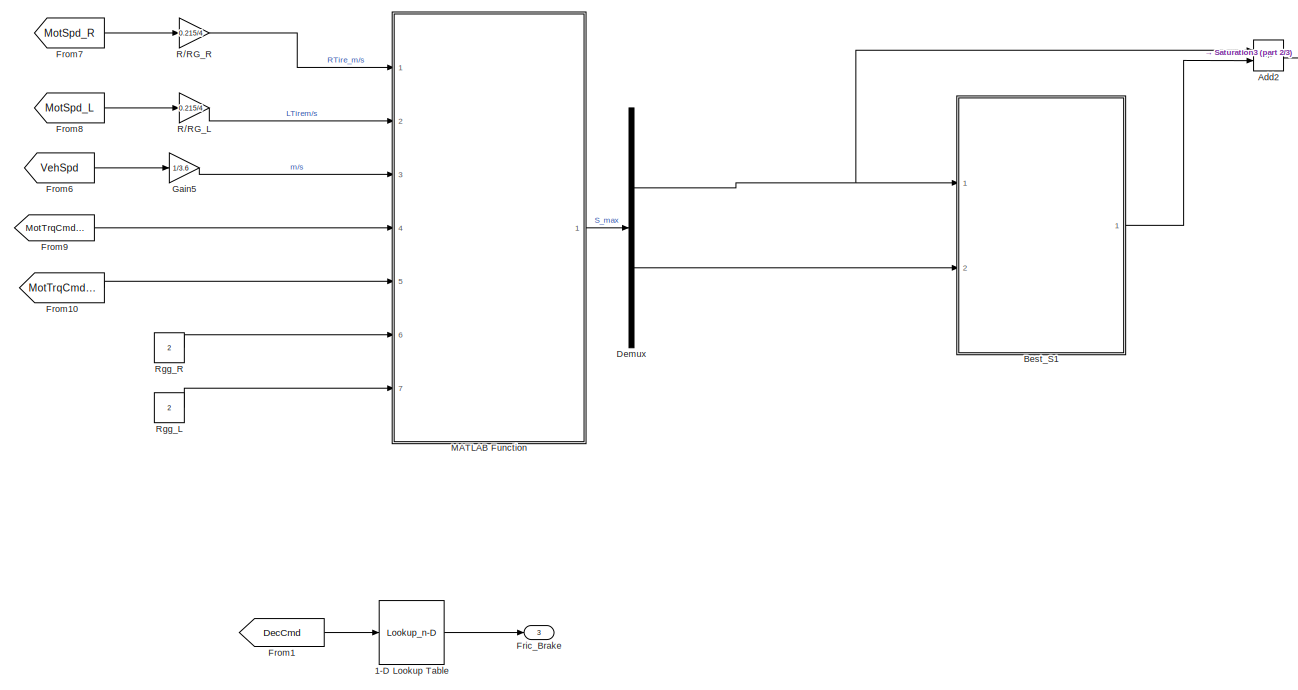
[diagram: root canvas - part 1/3, center side, full height]
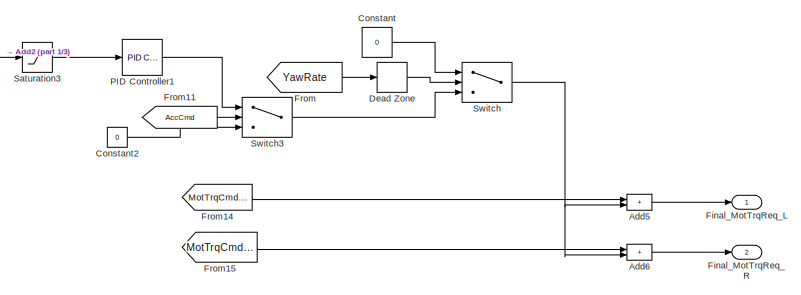
[diagram: root canvas - part 2/3, top right region]
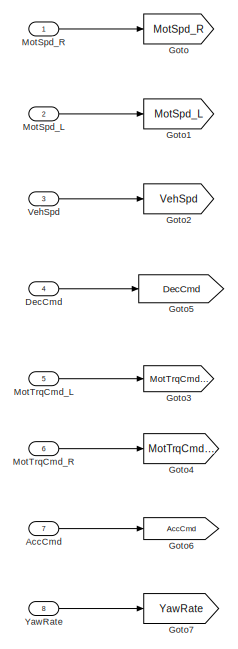
[diagram: root canvas - part 3/3, left side, full height]
MODEL slx_fb04b8d971a2
KIND model
CONFIG AbsTol = auto
CONFIG EnableMultiTasking = off
CONFIG FixedStep = auto
CONFIG MaxStep = auto
CONFIG MinStep = auto
CONFIG RelTol = 1e-3
CONFIG SampleTimeConstraint = Unconstrained
CONFIG Solver = VariableStepAuto
CONFIG SolverName = VariableStepAuto
CONFIG StartTime = 0.0
CONFIG StopTime = 10.0
BLOCK [Lookup_n-D] 1-D Lookup Table
  BreakpointsForDimension1 = [0 , 0.2,0.4,0.6,0.8,1.0]
  InternalRulePriority = Speed
  NumberOfTableDimensions = 1
  Ports = [1, 1]
  RndMeth = Simplest
  Table = [0 , 0.2,0.4,0.6,0.8,1.0]*60
BLOCK [Inport] AccCmd
  Port = 7
BLOCK [Sum] Add2
  IconShape = rectangular
  Inputs = -+
  Ports = [2, 1]
BLOCK [Sum] Add5
  IconShape = rectangular
  Ports = [2, 1]
BLOCK [Sum] Add6
  IconShape = rectangular
  Ports = [2, 1]
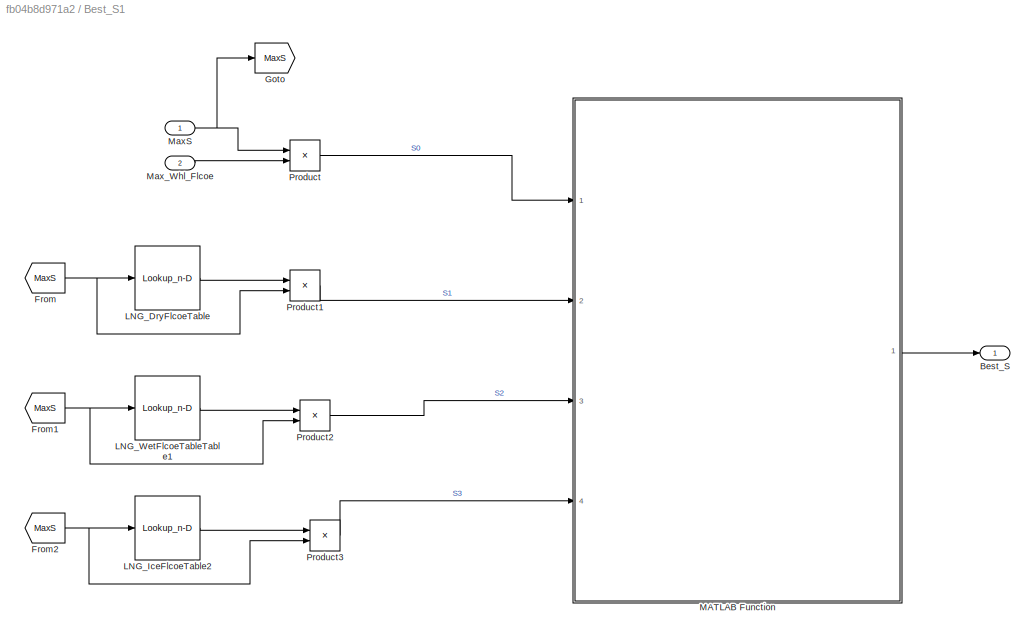
BLOCK [SubSystem] Best_S1
  Ports = [2, 1]
  RequestExecContextInheritance = off
BLOCK [Outport] Best_S1/Best_S
BLOCK [From] Best_S1/From
  GotoTag = MaxS
BLOCK [From] Best_S1/From1
  GotoTag = MaxS
BLOCK [From] Best_S1/From2
  GotoTag = MaxS
BLOCK [Goto] Best_S1/Goto
  GotoTag = MaxS
BLOCK [Lookup_n-D] Best_S1/LNG_DryFlcoeTable
  BreakpointsForDimension1 = [0	0.02	0.04	0.06	0.08	0.1	0.12	0.14	0.16	0.18	0.2	0.22	0.24	0.26	0.28	0.3	0.32	0.34	0.36	0.38	0.4	0.42	0.44	0.46	0.48	0.5	0.52	0.54	0.56	0.58	0.6	0.62	0.64	0.66	0.68	0.7	0.72	0.74	0.76	0.78	0.8	0.82	0.84	0.86	0.88	0.9	0.92	0.94	0.96	0.98	1]
  InternalRulePriority = Speed
  NumberOfTableDimensions = 1
  Ports = [1, 1]
  RndMeth = Simplest
  Table = [0	0.463	0.738	0.9	0.994	1.05	1.07	1.09	1.09	1.09	1.08	1.07	1.06	1.05	1.04	1.03	1.02	1.01	1	0.992	0.981	0.97	0.959	0.949	0.938	0.927	0.916	0.905	0.895	0.884	0.873	0.862	0.851	0.841	0.83	0.819	0.808	0.797	0.787	0.776	0.765	0.754	0.743	0.733	0.722	0.711	0.7	0.689	0.679	0.668	0.657]
BLOCK [Lookup_n-D] Best_S1/LNG_IceFlcoeTable2
  BreakpointsForDimension1 = [ 0, 0.02, 0.04, 0.06, 0.08, 0.1, 0.12, 0.14, 0.16, 0.18, 0.2, 0.22, 0.24, 0.26, 0.28, 0.3, 0.32, 0.34, 0.36, 0.38, 0.4, 0.42, 0.44, 0.46, 0.48, 0.5, 0.52, 0.54, 0.56, 0.58, 0.6, 0.62, 0.64, 0.66, 0.68, 0.7, 0.72, 0.74, 0.76, 0.78, 0.8, 0.82, 0.84, 0.86, 0.88, 0.9, 0.92, 0.94, 0.96, 0.98, 1.0]
  InternalRulePriority = Speed
  NumberOfTableDimensions = 1
  Ports = [1, 1]
  RndMeth = Simplest
  Table = [ 0, 0.05, 0.05, 0.05, 0.05, 0.05, 0.05, 0.05, 0.05, 0.05, 0.05, 0.05, 0.05, 0.05, 0.05, 0.05, 0.05, 0.05, 0.05, 0.05, 0.05, 0.05, 0.05, 0.05, 0.05, 0.05, 0.05, 0.05, 0.049, 0.049, 0.049, 0.049, 0.049, 0.049, 0.049, 0.049, 0.049, 0.049, 0.049, 0.049, 0.049, 0.049, 0.049, 0.049, 0.049, 0.049, 0.049, 0.049, 0.049, 0.049, 0.049]
BLOCK [Lookup_n-D] Best_S1/LNG_WetFlcoeTableTable1
  BreakpointsForDimension1 = [ 0, 0.02, 0.04, 0.06, 0.08, 0.1, 0.12, 0.14, 0.16, 0.18, 0.2, 0.22, 0.24, 0.26, 0.28, 0.3, 0.32, 0.34, 0.36, 0.38, 0.4, 0.42, 0.44, 0.46, 0.48, 0.5, 0.52, 0.54, 0.56, 0.58, 0.6, 0.62, 0.64, 0.66, 0.68, 0.7, 0.72, 0.74, 0.76, 0.78, 0.8, 0.82, 0.84, 0.86, 0.88, 0.9, 0.92, 0.94, 0.96, 0.98, 1.0]
  InternalRulePriority = Speed
  NumberOfTableDimensions = 1
  Ports = [1, 1]
  RndMeth = Simplest
  Table = [ 0, 0.41, 0.62, 0.72, 0.77, 0.79, 0.8, 0.8, 0.8, 0.79, 0.79, 0.78, 0.77, 0.77, 0.76, 0.75, 0.74, 0.74, 0.73, 0.72, 0.72, 0.71, 0.7, 0.7, 0.69, 0.68, 0.68, 0.67, 0.66, 0.65, 0.65, 0.64, 0.63, 0.63, 0.62, 0.61, 0.6, 0.6, 0.59, 0.58, 0.58, 0.57, 0.56, 0.56, 0.55, 0.54, 0.54, 0.53, 0.52, 0.51, 0.51]
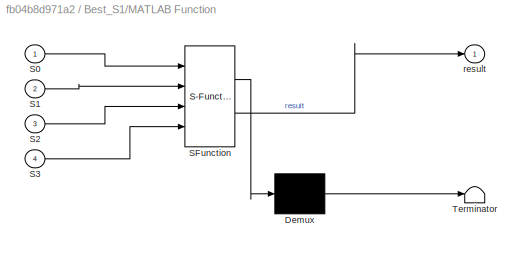
BLOCK [SubSystem] Best_S1/MATLAB Function
  ErrorFcn = Stateflow.Translate.translate
  PermitHierarchicalResolution = ExplicitOnly
  Ports = [4, 1]
  RequestExecContextInheritance = off
  SFBlockType = MATLAB Function
  TreatAsAtomicUnit = on
BLOCK [Demux] Best_S1/MATLAB Function/ Demux 
  Outputs = 1
  Ports = [1, 1]
BLOCK [S-Function] Best_S1/MATLAB Function/ SFunction 
  EnableBusSupport = on
  FunctionName = sf_sfun
  PortCounts = [4 2]
  Ports = [4, 2]
  SFcnIsStateOwnerBlock = off
  SFunctionDeploymentMode = off
  Tag = Stateflow S-Function 3
BLOCK [Terminator] Best_S1/MATLAB Function/ Terminator 
BLOCK [Inport] Best_S1/MATLAB Function/S0
BLOCK [Inport] Best_S1/MATLAB Function/S1
  Port = 2
BLOCK [Inport] Best_S1/MATLAB Function/S2
  Port = 3
BLOCK [Inport] Best_S1/MATLAB Function/S3
  Port = 4
BLOCK [Outport] Best_S1/MATLAB Function/result
BLOCK [Inport] Best_S1/MaxS
BLOCK [Inport] Best_S1/Max_Whl_Flcoe
  Port = 2
BLOCK [Product] Best_S1/Product
  Ports = [2, 1]
BLOCK [Product] Best_S1/Product1
  Ports = [2, 1]
BLOCK [Product] Best_S1/Product2
  Ports = [2, 1]
BLOCK [Product] Best_S1/Product3
  Ports = [2, 1]
BLOCK [Constant] Constant
  Value = 0
BLOCK [Constant] Constant2
  Value = 0
BLOCK [DeadZone] Dead Zone
  LowerValue = -0.25
  UpperValue = 0.25
BLOCK [Inport] DecCmd
  Port = 4
BLOCK [Demux] Demux
  Outputs = 2
  Ports = [1, 2]
BLOCK [Outport] Final_MotTrqReq_L
BLOCK [Outport] Final_MotTrqReq_R
  Port = 2
BLOCK [Outport] Fric_Brake
  Port = 3
BLOCK [From] From
  GotoTag = YawRate
BLOCK [From] From1
  GotoTag = DecCmd
BLOCK [From] From10
  GotoTag = MotTrqCmd_R
BLOCK [From] From11
  GotoTag = AccCmd
BLOCK [From] From14
  GotoTag = MotTrqCmd_L
BLOCK [From] From15
  GotoTag = MotTrqCmd_R
BLOCK [From] From6
  GotoTag = VehSpd
BLOCK [From] From7
  GotoTag = MotSpd_R
BLOCK [From] From8
  GotoTag = MotSpd_L
BLOCK [From] From9
  GotoTag = MotTrqCmd_L
BLOCK [Gain] Gain5
  Gain = 1/3.6
BLOCK [Goto] Goto
  GotoTag = MotSpd_R
BLOCK [Goto] Goto1
  GotoTag = MotSpd_L
BLOCK [Goto] Goto2
  GotoTag = VehSpd
BLOCK [Goto] Goto3
  GotoTag = MotTrqCmd_L
BLOCK [Goto] Goto4
  GotoTag = MotTrqCmd_R
BLOCK [Goto] Goto5
  GotoTag = DecCmd
BLOCK [Goto] Goto6
  GotoTag = AccCmd
BLOCK [Goto] Goto7
  GotoTag = YawRate
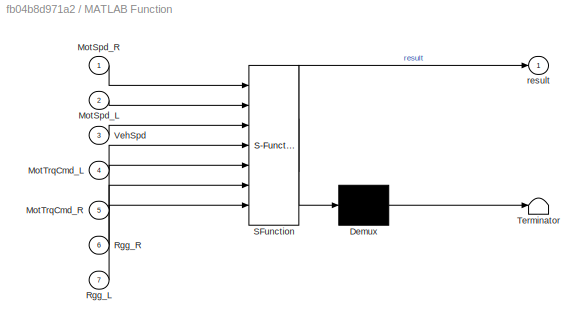
BLOCK [SubSystem] MATLAB Function
  ErrorFcn = Stateflow.Translate.translate
  PermitHierarchicalResolution = ExplicitOnly
  Ports = [7, 1]
  RequestExecContextInheritance = off
  SFBlockType = MATLAB Function
  TreatAsAtomicUnit = on
BLOCK [Demux] MATLAB Function/ Demux 
  Outputs = 1
  Ports = [1, 1]
BLOCK [S-Function] MATLAB Function/ SFunction 
  EnableBusSupport = on
  FunctionName = sf_sfun
  PortCounts = [7 2]
  Ports = [7, 2]
  SFcnIsStateOwnerBlock = off
  SFunctionDeploymentMode = off
  Tag = Stateflow S-Function 2
BLOCK [Terminator] MATLAB Function/ Terminator 
BLOCK [Inport] MATLAB Function/MotSpd_L
  Port = 2
BLOCK [Inport] MATLAB Function/MotSpd_R
BLOCK [Inport] MATLAB Function/MotTrqCmd_L
  Port = 4
BLOCK [Inport] MATLAB Function/MotTrqCmd_R
  Port = 5
BLOCK [Inport] MATLAB Function/Rgg_L
  Port = 7
BLOCK [Inport] MATLAB Function/Rgg_R
  Port = 6
BLOCK [Inport] MATLAB Function/VehSpd
  Port = 3
BLOCK [Outport] MATLAB Function/result
BLOCK [Inport] MotSpd_L
  Port = 2
BLOCK [Inport] MotSpd_R
BLOCK [Inport] MotTrqCmd_L
  Port = 5
BLOCK [Inport] MotTrqCmd_R
  Port = 6
BLOCK [Reference] PID Controller1  REF=simulink/Continuous/PID Controller
  Ports = [1, 1]
  SourceBlock = simulink/Continuous/PID Controller
  SourceProductBaseCode = SL
  SourceType = PID 1dof
BLOCK [Gain] R//RG_L
  Gain = 0.215/4
BLOCK [Gain] R//RG_R
  Gain = 0.215/4
BLOCK [Constant] Rgg_L
  Value = 2
BLOCK [Constant] Rgg_R
  Value = 2
BLOCK [Saturate] Saturation3
  LowerLimit = -2
  UpperLimit = 2
BLOCK [Switch] Switch
  Criteria = u2 > Threshold
  InputSameDT = off
  SaturateOnIntegerOverflow = off
BLOCK [Switch] Switch3
  Criteria = u2 > Threshold
  InputSameDT = off
  SaturateOnIntegerOverflow = off
BLOCK [Inport] VehSpd
  Port = 3
BLOCK [Inport] YawRate
  Port = 8
LINE 1-D Lookup Table:1 -> Fric_Brake:1
LINE AccCmd:1 -> Goto6:1
LINE Add2:1 -> Saturation3:1
LINE Add5:1 -> Final_MotTrqReq_L:1
LINE Add6:1 -> Final_MotTrqReq_R:1
NET Best_S1/From1:1 -> Best_S1/LNG_WetFlcoeTableTable1:1, Best_S1/Product2:2
NET Best_S1/From2:1 -> Best_S1/LNG_IceFlcoeTable2:1, Best_S1/Product3:2
NET Best_S1/From:1 -> Best_S1/LNG_DryFlcoeTable:1, Best_S1/Product1:2
LINE Best_S1/LNG_DryFlcoeTable:1 -> Best_S1/Product1:1
LINE Best_S1/LNG_IceFlcoeTable2:1 -> Best_S1/Product3:1
LINE Best_S1/LNG_WetFlcoeTableTable1:1 -> Best_S1/Product2:1
LINE Best_S1/MATLAB Function:1 -> Best_S1/Best_S:1
NET Best_S1/MaxS:1 -> Best_S1/Goto:1, Best_S1/Product:1
LINE Best_S1/Max_Whl_Flcoe:1 -> Best_S1/Product:2
LINE Best_S1/Product1:1 -> Best_S1/MATLAB Function:2
LINE Best_S1/Product2:1 -> Best_S1/MATLAB Function:3
LINE Best_S1/Product3:1 -> Best_S1/MATLAB Function:4
LINE Best_S1/Product:1 -> Best_S1/MATLAB Function:1
LINE Best_S1:1 -> Add2:2
LINE Constant2:1 -> Switch3:3
LINE Constant:1 -> Switch:1
LINE Dead Zone:1 -> Switch:2
LINE DecCmd:1 -> Goto5:1
NET Demux:1 -> Add2:1, Best_S1:1
LINE Demux:2 -> Best_S1:2
LINE From10:1 -> MATLAB Function:5
LINE From11:1 -> Switch3:2
LINE From14:1 -> Add5:1
LINE From15:1 -> Add6:1
LINE From1:1 -> 1-D Lookup Table:1
LINE From6:1 -> Gain5:1
LINE From7:1 -> R//RG_R:1
LINE From8:1 -> R//RG_L:1
LINE From9:1 -> MATLAB Function:4
LINE From:1 -> Dead Zone:1
LINE Gain5:1 -> MATLAB Function:3
LINE MATLAB Function:1 -> Demux:1
LINE MotSpd_L:1 -> Goto1:1
LINE MotSpd_R:1 -> Goto:1
LINE MotTrqCmd_L:1 -> Goto3:1
LINE MotTrqCmd_R:1 -> Goto4:1
LINE PID Controller1:1 -> Switch3:1
LINE R//RG_L:1 -> MATLAB Function:2
LINE R//RG_R:1 -> MATLAB Function:1
LINE Rgg_L:1 -> MATLAB Function:7
LINE Rgg_R:1 -> MATLAB Function:6
LINE Saturation3:1 -> PID Controller1:1
LINE Switch3:1 -> Switch:3
NET Switch:1 -> Add5:2, Add6:2
LINE VehSpd:1 -> Goto2:1
LINE YawRate:1 -> Goto7:1
note: NET lines group one-source signal fan-out (src -> all destinations, sorted); 1:1 wires keep LINE
CHART MATLAB Function states=1 transitions=1
  STATE_LABEL 'eML_blk_kernel()'
  STATE_LABEL 'SCRIPT:\nfunction result = fcn(MotSpd_R,MotSpd_L,VehSpd,MotTrqCmd_L,MotTrqCmd_R,Rgg_R,Rgg_L)\nS_r = (MotSpd_R - VehSpd)/MotSpd_R;\nS_l = (MotSpd_L - VehSpd)/MotSpd_L;\n if(S_r>S_l)\n     S_max = S_r;\n     u_max = (MotTrqCmd_R*Rgg_R*0.95)/0.215/(330*0.55*0.5);\n else\n     S_max = S_l;\n     u_max = (MotTrqCmd_L*Rgg_L*0.95)/0.215/(330*0.55*0.5);\n end\nresult = [S_max;u_max];\nend'
CHART Best_S1/MATLAB Function states=1 transitions=1
  STATE_LABEL 'eML_blk_kernel()'
  STATE_LABEL 'SCRIPT:\nfunction result = fcn(S0,S1,S2,S3)\n    a = abs(S0-S1);a1=0.16;\n    b=abs(S0-S2);b1=0.131;\n    c = abs(S0-S3);c1=0.031;\n    if a>b\n        if b>c\n            best_S = c1;\n        else\n            best_S =b1;\n        end\n    else\n       if a>c\n           best_S = c1;\n       else\n           best_S = a1;\n       end\n    end\nresult = best_S;\nend\n'
CHART  states=0 transitions=0
CHART  states=0 transitions=0
